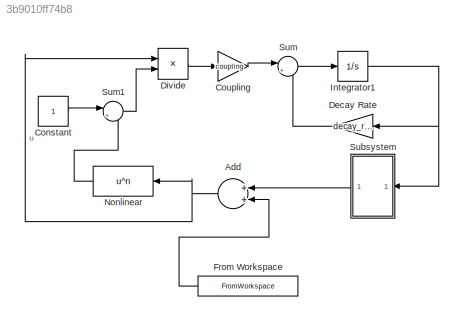
MODEL slx_3b9010ff74b8
KIND model
CONFIG AbsTol = auto
CONFIG EnableMultiTasking = off
CONFIG FixedStep = 0.01
CONFIG MaxStep = auto
CONFIG MinStep = auto
CONFIG RelTol = 1e-3
CONFIG SampleTimeConstraint = Unconstrained
CONFIG Solver = ode4
CONFIG SolverName = ode4
CONFIG StartTime = 0.0
CONFIG StopTime = TFinal
BLOCK [Sum] Add
  InputSameDT = off
  OutDataTypeStr = Inherit: Inherit via internal rule
  Ports = [2, 1]
  SaturateOnIntegerOverflow = off
BLOCK [Constant] Constant
BLOCK [Gain] Coupling
  Gain = coupling
  OutDataTypeStr = Inherit: Inherit via internal rule
  ParamDataTypeStr = Inherit: Inherit via internal rule
  SaturateOnIntegerOverflow = off
BLOCK [Gain] Decay Rate 
  Gain = decay_rate
  OutDataTypeStr = Inherit: Inherit via internal rule
  ParamDataTypeStr = Inherit: Inherit via internal rule
  SaturateOnIntegerOverflow = off
BLOCK [Product] Divide
  InputSameDT = off
  Inputs = */
  OutDataTypeStr = Inherit: Inherit via internal rule
  Ports = [2, 1]
  RndMeth = Floor
  SaturateOnIntegerOverflow = off
BLOCK [FromWorkspace] From Workspace
  SampleTime = 0
  VariableName = system_inputSequence
  ZeroCross = on
BLOCK [Integrator] Integrator1
  IgnoreLimit = on
  Ports = [1, 1]
BLOCK [Fcn] Nonlinear
  Expr = u^n
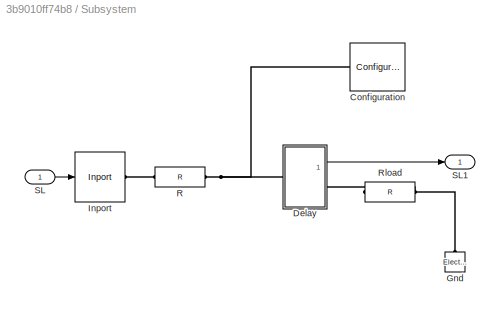
BLOCK [SubSystem] Subsystem
  Ports = [1, 1]
  RequestExecContextInheritance = off
BLOCK [Reference] Subsystem/Configuration  REF=simrfV2util1/Configuration
  Ports = [0, 0, 0, 0, 0, 1]
  SourceBlock = simrfV2util1/Configuration
  SourceProductBaseCode = RB
  SourceProductName = RF Blockset
  SourceType = Configuration
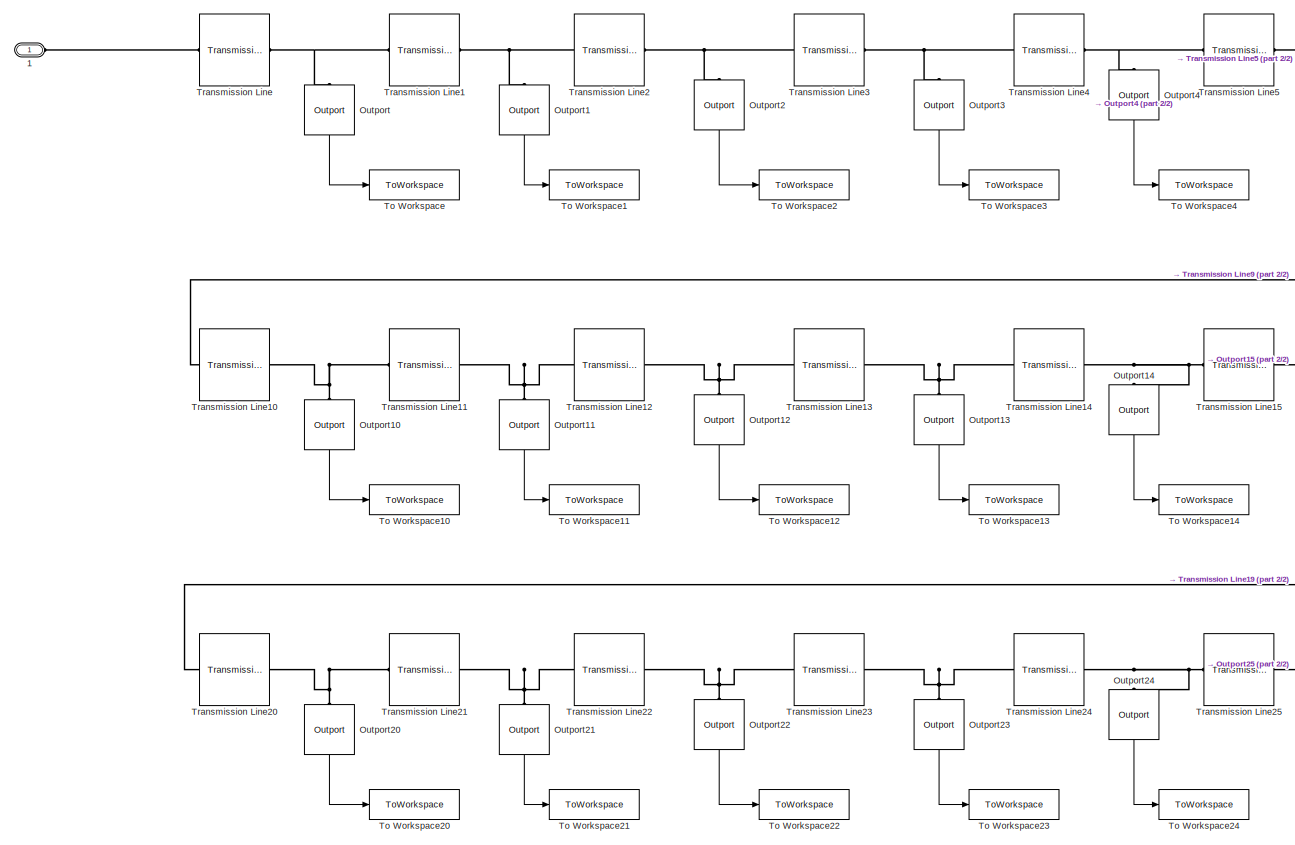
[diagram: Subsystem/Delay - part 1/2, left side, full height]
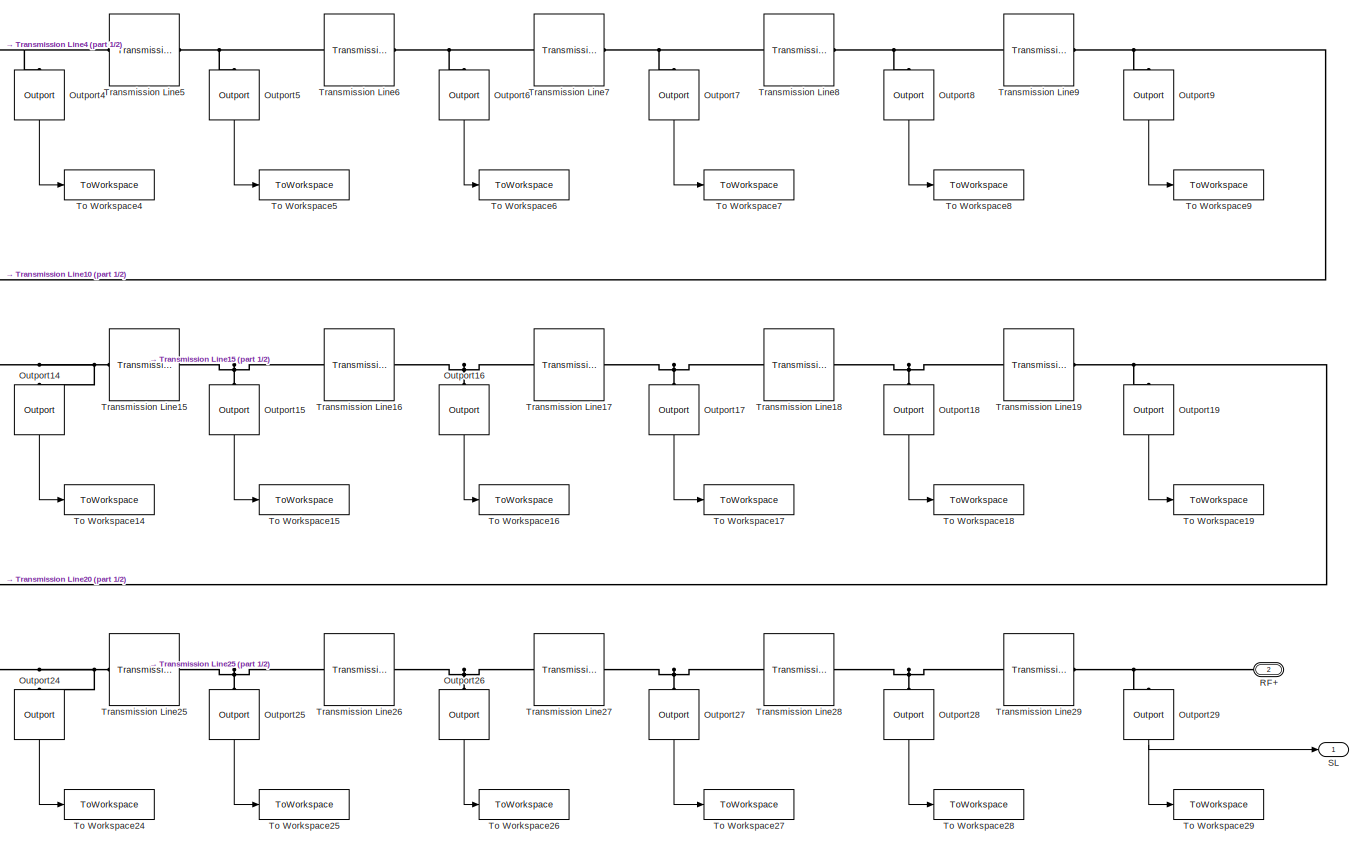
[diagram: Subsystem/Delay - part 2/2, right side, full height]
BLOCK [SubSystem] Subsystem/Delay
  Ports = [0, 1, 0, 0, 0, 1, 1]
  RequestExecContextInheritance = off
BLOCK [PMIOPort] Subsystem/Delay/1
  Side = Left
BLOCK [Reference] Subsystem/Delay/Outport  REF=simrfV2util1/Outport
  Ports = [0, 1, 0, 0, 0, 1]
  SourceBlock = simrfV2util1/Outport
  SourceProductBaseCode = RB
  SourceProductName = RF Blockset
  SourceType = Outport
BLOCK [Reference] Subsystem/Delay/Outport1  REF=simrfV2util1/Outport
  Ports = [0, 1, 0, 0, 0, 1]
  SourceBlock = simrfV2util1/Outport
  SourceProductBaseCode = RB
  SourceProductName = RF Blockset
  SourceType = Outport
BLOCK [Reference] Subsystem/Delay/Outport10  REF=simrfV2util1/Outport
  Ports = [0, 1, 0, 0, 0, 1]
  SourceBlock = simrfV2util1/Outport
  SourceProductBaseCode = RB
  SourceProductName = RF Blockset
  SourceType = Outport
BLOCK [Reference] Subsystem/Delay/Outport11  REF=simrfV2util1/Outport
  Ports = [0, 1, 0, 0, 0, 1]
  SourceBlock = simrfV2util1/Outport
  SourceProductBaseCode = RB
  SourceProductName = RF Blockset
  SourceType = Outport
BLOCK [Reference] Subsystem/Delay/Outport12  REF=simrfV2util1/Outport
  Ports = [0, 1, 0, 0, 0, 1]
  SourceBlock = simrfV2util1/Outport
  SourceProductBaseCode = RB
  SourceProductName = RF Blockset
  SourceType = Outport
BLOCK [Reference] Subsystem/Delay/Outport13  REF=simrfV2util1/Outport
  Ports = [0, 1, 0, 0, 0, 1]
  SourceBlock = simrfV2util1/Outport
  SourceProductBaseCode = RB
  SourceProductName = RF Blockset
  SourceType = Outport
BLOCK [Reference] Subsystem/Delay/Outport14  REF=simrfV2util1/Outport
  Ports = [0, 1, 0, 0, 0, 1]
  SourceBlock = simrfV2util1/Outport
  SourceProductBaseCode = RB
  SourceProductName = RF Blockset
  SourceType = Outport
BLOCK [Reference] Subsystem/Delay/Outport15  REF=simrfV2util1/Outport
  Ports = [0, 1, 0, 0, 0, 1]
  SourceBlock = simrfV2util1/Outport
  SourceProductBaseCode = RB
  SourceProductName = RF Blockset
  SourceType = Outport
BLOCK [Reference] Subsystem/Delay/Outport16  REF=simrfV2util1/Outport
  Ports = [0, 1, 0, 0, 0, 1]
  SourceBlock = simrfV2util1/Outport
  SourceProductBaseCode = RB
  SourceProductName = RF Blockset
  SourceType = Outport
BLOCK [Reference] Subsystem/Delay/Outport17  REF=simrfV2util1/Outport
  Ports = [0, 1, 0, 0, 0, 1]
  SourceBlock = simrfV2util1/Outport
  SourceProductBaseCode = RB
  SourceProductName = RF Blockset
  SourceType = Outport
BLOCK [Reference] Subsystem/Delay/Outport18  REF=simrfV2util1/Outport
  Ports = [0, 1, 0, 0, 0, 1]
  SourceBlock = simrfV2util1/Outport
  SourceProductBaseCode = RB
  SourceProductName = RF Blockset
  SourceType = Outport
BLOCK [Reference] Subsystem/Delay/Outport19  REF=simrfV2util1/Outport
  Ports = [0, 1, 0, 0, 0, 1]
  SourceBlock = simrfV2util1/Outport
  SourceProductBaseCode = RB
  SourceProductName = RF Blockset
  SourceType = Outport
BLOCK [Reference] Subsystem/Delay/Outport2  REF=simrfV2util1/Outport
  Ports = [0, 1, 0, 0, 0, 1]
  SourceBlock = simrfV2util1/Outport
  SourceProductBaseCode = RB
  SourceProductName = RF Blockset
  SourceType = Outport
BLOCK [Reference] Subsystem/Delay/Outport20  REF=simrfV2util1/Outport
  Ports = [0, 1, 0, 0, 0, 1]
  SourceBlock = simrfV2util1/Outport
  SourceProductBaseCode = RB
  SourceProductName = RF Blockset
  SourceType = Outport
BLOCK [Reference] Subsystem/Delay/Outport21  REF=simrfV2util1/Outport
  Ports = [0, 1, 0, 0, 0, 1]
  SourceBlock = simrfV2util1/Outport
  SourceProductBaseCode = RB
  SourceProductName = RF Blockset
  SourceType = Outport
BLOCK [Reference] Subsystem/Delay/Outport22  REF=simrfV2util1/Outport
  Ports = [0, 1, 0, 0, 0, 1]
  SourceBlock = simrfV2util1/Outport
  SourceProductBaseCode = RB
  SourceProductName = RF Blockset
  SourceType = Outport
BLOCK [Reference] Subsystem/Delay/Outport23  REF=simrfV2util1/Outport
  Ports = [0, 1, 0, 0, 0, 1]
  SourceBlock = simrfV2util1/Outport
  SourceProductBaseCode = RB
  SourceProductName = RF Blockset
  SourceType = Outport
BLOCK [Reference] Subsystem/Delay/Outport24  REF=simrfV2util1/Outport
  Ports = [0, 1, 0, 0, 0, 1]
  SourceBlock = simrfV2util1/Outport
  SourceProductBaseCode = RB
  SourceProductName = RF Blockset
  SourceType = Outport
BLOCK [Reference] Subsystem/Delay/Outport25  REF=simrfV2util1/Outport
  Ports = [0, 1, 0, 0, 0, 1]
  SourceBlock = simrfV2util1/Outport
  SourceProductBaseCode = RB
  SourceProductName = RF Blockset
  SourceType = Outport
BLOCK [Reference] Subsystem/Delay/Outport26  REF=simrfV2util1/Outport
  Ports = [0, 1, 0, 0, 0, 1]
  SourceBlock = simrfV2util1/Outport
  SourceProductBaseCode = RB
  SourceProductName = RF Blockset
  SourceType = Outport
BLOCK [Reference] Subsystem/Delay/Outport27  REF=simrfV2util1/Outport
  Ports = [0, 1, 0, 0, 0, 1]
  SourceBlock = simrfV2util1/Outport
  SourceProductBaseCode = RB
  SourceProductName = RF Blockset
  SourceType = Outport
BLOCK [Reference] Subsystem/Delay/Outport28  REF=simrfV2util1/Outport
  Ports = [0, 1, 0, 0, 0, 1]
  SourceBlock = simrfV2util1/Outport
  SourceProductBaseCode = RB
  SourceProductName = RF Blockset
  SourceType = Outport
BLOCK [Reference] Subsystem/Delay/Outport29  REF=simrfV2util1/Outport
  Ports = [0, 1, 0, 0, 0, 1]
  SourceBlock = simrfV2util1/Outport
  SourceProductBaseCode = RB
  SourceProductName = RF Blockset
  SourceType = Outport
BLOCK [Reference] Subsystem/Delay/Outport3  REF=simrfV2util1/Outport
  Ports = [0, 1, 0, 0, 0, 1]
  SourceBlock = simrfV2util1/Outport
  SourceProductBaseCode = RB
  SourceProductName = RF Blockset
  SourceType = Outport
BLOCK [Reference] Subsystem/Delay/Outport4  REF=simrfV2util1/Outport
  Ports = [0, 1, 0, 0, 0, 1]
  SourceBlock = simrfV2util1/Outport
  SourceProductBaseCode = RB
  SourceProductName = RF Blockset
  SourceType = Outport
BLOCK [Reference] Subsystem/Delay/Outport5  REF=simrfV2util1/Outport
  Ports = [0, 1, 0, 0, 0, 1]
  SourceBlock = simrfV2util1/Outport
  SourceProductBaseCode = RB
  SourceProductName = RF Blockset
  SourceType = Outport
BLOCK [Reference] Subsystem/Delay/Outport6  REF=simrfV2util1/Outport
  Ports = [0, 1, 0, 0, 0, 1]
  SourceBlock = simrfV2util1/Outport
  SourceProductBaseCode = RB
  SourceProductName = RF Blockset
  SourceType = Outport
BLOCK [Reference] Subsystem/Delay/Outport7  REF=simrfV2util1/Outport
  Ports = [0, 1, 0, 0, 0, 1]
  SourceBlock = simrfV2util1/Outport
  SourceProductBaseCode = RB
  SourceProductName = RF Blockset
  SourceType = Outport
BLOCK [Reference] Subsystem/Delay/Outport8  REF=simrfV2util1/Outport
  Ports = [0, 1, 0, 0, 0, 1]
  SourceBlock = simrfV2util1/Outport
  SourceProductBaseCode = RB
  SourceProductName = RF Blockset
  SourceType = Outport
BLOCK [Reference] Subsystem/Delay/Outport9  REF=simrfV2util1/Outport
  Ports = [0, 1, 0, 0, 0, 1]
  SourceBlock = simrfV2util1/Outport
  SourceProductBaseCode = RB
  SourceProductName = RF Blockset
  SourceType = Outport
BLOCK [PMIOPort] Subsystem/Delay/RF+
  Port = 2
  Side = Right
BLOCK [Outport] Subsystem/Delay/SL
  IconDisplay = Port number
BLOCK [ToWorkspace] Subsystem/Delay/To Workspace
  FixptAsFi = on
  MaxDataPoints = inf
  Ports = [1]
  SampleTime = sample_time
  VariableName = simout
BLOCK [ToWorkspace] Subsystem/Delay/To Workspace1
  FixptAsFi = on
  MaxDataPoints = inf
  Ports = [1]
  SampleTime = sample_time
  VariableName = simout1
BLOCK [ToWorkspace] Subsystem/Delay/To Workspace10
  FixptAsFi = on
  MaxDataPoints = inf
  Ports = [1]
  SampleTime = sample_time
  VariableName = simout10
BLOCK [ToWorkspace] Subsystem/Delay/To Workspace11
  FixptAsFi = on
  MaxDataPoints = inf
  Ports = [1]
  SampleTime = sample_time
  VariableName = simout11
BLOCK [ToWorkspace] Subsystem/Delay/To Workspace12
  FixptAsFi = on
  MaxDataPoints = inf
  Ports = [1]
  SampleTime = sample_time
  VariableName = simout12
BLOCK [ToWorkspace] Subsystem/Delay/To Workspace13
  FixptAsFi = on
  MaxDataPoints = inf
  Ports = [1]
  SampleTime = sample_time
  VariableName = simout13
BLOCK [ToWorkspace] Subsystem/Delay/To Workspace14
  FixptAsFi = on
  MaxDataPoints = inf
  Ports = [1]
  SampleTime = sample_time
  VariableName = simout14
BLOCK [ToWorkspace] Subsystem/Delay/To Workspace15
  FixptAsFi = on
  MaxDataPoints = inf
  Ports = [1]
  SampleTime = sample_time
  VariableName = simout15
BLOCK [ToWorkspace] Subsystem/Delay/To Workspace16
  FixptAsFi = on
  MaxDataPoints = inf
  Ports = [1]
  SampleTime = sample_time
  VariableName = simout16
BLOCK [ToWorkspace] Subsystem/Delay/To Workspace17
  FixptAsFi = on
  MaxDataPoints = inf
  Ports = [1]
  SampleTime = sample_time
  VariableName = simout17
BLOCK [ToWorkspace] Subsystem/Delay/To Workspace18
  FixptAsFi = on
  MaxDataPoints = inf
  Ports = [1]
  SampleTime = sample_time
  VariableName = simout18
BLOCK [ToWorkspace] Subsystem/Delay/To Workspace19
  FixptAsFi = on
  MaxDataPoints = inf
  Ports = [1]
  SampleTime = sample_time
  VariableName = simout19
BLOCK [ToWorkspace] Subsystem/Delay/To Workspace2
  FixptAsFi = on
  MaxDataPoints = inf
  Ports = [1]
  SampleTime = sample_time
  VariableName = simout2
BLOCK [ToWorkspace] Subsystem/Delay/To Workspace20
  FixptAsFi = on
  MaxDataPoints = inf
  Ports = [1]
  SampleTime = sample_time
  VariableName = simout20
BLOCK [ToWorkspace] Subsystem/Delay/To Workspace21
  FixptAsFi = on
  MaxDataPoints = inf
  Ports = [1]
  SampleTime = sample_time
  VariableName = simout21
BLOCK [ToWorkspace] Subsystem/Delay/To Workspace22
  FixptAsFi = on
  MaxDataPoints = inf
  Ports = [1]
  SampleTime = sample_time
  VariableName = simout22
BLOCK [ToWorkspace] Subsystem/Delay/To Workspace23
  FixptAsFi = on
  MaxDataPoints = inf
  Ports = [1]
  SampleTime = sample_time
  VariableName = simout23
BLOCK [ToWorkspace] Subsystem/Delay/To Workspace24
  FixptAsFi = on
  MaxDataPoints = inf
  Ports = [1]
  SampleTime = sample_time
  VariableName = simout24
BLOCK [ToWorkspace] Subsystem/Delay/To Workspace25
  FixptAsFi = on
  MaxDataPoints = inf
  Ports = [1]
  SampleTime = sample_time
  VariableName = simout25
BLOCK [ToWorkspace] Subsystem/Delay/To Workspace26
  FixptAsFi = on
  MaxDataPoints = inf
  Ports = [1]
  SampleTime = sample_time
  VariableName = simout26
BLOCK [ToWorkspace] Subsystem/Delay/To Workspace27
  FixptAsFi = on
  MaxDataPoints = inf
  Ports = [1]
  SampleTime = sample_time
  VariableName = simout27
BLOCK [ToWorkspace] Subsystem/Delay/To Workspace28
  FixptAsFi = on
  MaxDataPoints = inf
  Ports = [1]
  SampleTime = sample_time
  VariableName = simout28
BLOCK [ToWorkspace] Subsystem/Delay/To Workspace29
  FixptAsFi = on
  MaxDataPoints = inf
  Ports = [1]
  SampleTime = sample_time
  VariableName = simout29
BLOCK [ToWorkspace] Subsystem/Delay/To Workspace3
  FixptAsFi = on
  MaxDataPoints = inf
  Ports = [1]
  SampleTime = sample_time
  VariableName = simout3
BLOCK [ToWorkspace] Subsystem/Delay/To Workspace4
  FixptAsFi = on
  MaxDataPoints = inf
  Ports = [1]
  SampleTime = sample_time
  VariableName = simout4
BLOCK [ToWorkspace] Subsystem/Delay/To Workspace5
  FixptAsFi = on
  MaxDataPoints = inf
  Ports = [1]
  SampleTime = sample_time
  VariableName = simout5
BLOCK [ToWorkspace] Subsystem/Delay/To Workspace6
  FixptAsFi = on
  MaxDataPoints = inf
  Ports = [1]
  SampleTime = sample_time
  VariableName = simout6
BLOCK [ToWorkspace] Subsystem/Delay/To Workspace7
  FixptAsFi = on
  MaxDataPoints = inf
  Ports = [1]
  SampleTime = sample_time
  VariableName = simout7
BLOCK [ToWorkspace] Subsystem/Delay/To Workspace8
  FixptAsFi = on
  MaxDataPoints = inf
  Ports = [1]
  SampleTime = sample_time
  VariableName = simout8
BLOCK [ToWorkspace] Subsystem/Delay/To Workspace9
  FixptAsFi = on
  MaxDataPoints = inf
  Ports = [1]
  SampleTime = sample_time
  VariableName = simout9
BLOCK [Reference] Subsystem/Delay/Transmission Line  REF=simrfV2elements/Transmission
Line
  Ports = [0, 0, 0, 0, 0, 1, 1]
  SourceBlock = simrfV2elements/Transmission\nLine
  SourceProductBaseCode = RB
  SourceProductName = RF Blockset
  SourceType = Transmission Line
  UserDataPersistent = on
BLOCK [Reference] Subsystem/Delay/Transmission Line1  REF=simrfV2elements/Transmission
Line
  Ports = [0, 0, 0, 0, 0, 1, 1]
  SourceBlock = simrfV2elements/Transmission\nLine
  SourceProductBaseCode = RB
  SourceProductName = RF Blockset
  SourceType = Transmission Line
  UserDataPersistent = on
BLOCK [Reference] Subsystem/Delay/Transmission Line10  REF=simrfV2elements/Transmission
Line
  Ports = [0, 0, 0, 0, 0, 1, 1]
  SourceBlock = simrfV2elements/Transmission\nLine
  SourceProductBaseCode = RB
  SourceProductName = RF Blockset
  SourceType = Transmission Line
  UserDataPersistent = on
BLOCK [Reference] Subsystem/Delay/Transmission Line11  REF=simrfV2elements/Transmission
Line
  Ports = [0, 0, 0, 0, 0, 1, 1]
  SourceBlock = simrfV2elements/Transmission\nLine
  SourceProductBaseCode = RB
  SourceProductName = RF Blockset
  SourceType = Transmission Line
  UserDataPersistent = on
BLOCK [Reference] Subsystem/Delay/Transmission Line12  REF=simrfV2elements/Transmission
Line
  Ports = [0, 0, 0, 0, 0, 1, 1]
  SourceBlock = simrfV2elements/Transmission\nLine
  SourceProductBaseCode = RB
  SourceProductName = RF Blockset
  SourceType = Transmission Line
  UserDataPersistent = on
BLOCK [Reference] Subsystem/Delay/Transmission Line13  REF=simrfV2elements/Transmission
Line
  Ports = [0, 0, 0, 0, 0, 1, 1]
  SourceBlock = simrfV2elements/Transmission\nLine
  SourceProductBaseCode = RB
  SourceProductName = RF Blockset
  SourceType = Transmission Line
  UserDataPersistent = on
BLOCK [Reference] Subsystem/Delay/Transmission Line14  REF=simrfV2elements/Transmission
Line
  Ports = [0, 0, 0, 0, 0, 1, 1]
  SourceBlock = simrfV2elements/Transmission\nLine
  SourceProductBaseCode = RB
  SourceProductName = RF Blockset
  SourceType = Transmission Line
  UserDataPersistent = on
BLOCK [Reference] Subsystem/Delay/Transmission Line15  REF=simrfV2elements/Transmission
Line
  Ports = [0, 0, 0, 0, 0, 1, 1]
  SourceBlock = simrfV2elements/Transmission\nLine
  SourceProductBaseCode = RB
  SourceProductName = RF Blockset
  SourceType = Transmission Line
  UserDataPersistent = on
BLOCK [Reference] Subsystem/Delay/Transmission Line16  REF=simrfV2elements/Transmission
Line
  Ports = [0, 0, 0, 0, 0, 1, 1]
  SourceBlock = simrfV2elements/Transmission\nLine
  SourceProductBaseCode = RB
  SourceProductName = RF Blockset
  SourceType = Transmission Line
  UserDataPersistent = on
BLOCK [Reference] Subsystem/Delay/Transmission Line17  REF=simrfV2elements/Transmission
Line
  Ports = [0, 0, 0, 0, 0, 1, 1]
  SourceBlock = simrfV2elements/Transmission\nLine
  SourceProductBaseCode = RB
  SourceProductName = RF Blockset
  SourceType = Transmission Line
  UserDataPersistent = on
BLOCK [Reference] Subsystem/Delay/Transmission Line18  REF=simrfV2elements/Transmission
Line
  Ports = [0, 0, 0, 0, 0, 1, 1]
  SourceBlock = simrfV2elements/Transmission\nLine
  SourceProductBaseCode = RB
  SourceProductName = RF Blockset
  SourceType = Transmission Line
  UserDataPersistent = on
BLOCK [Reference] Subsystem/Delay/Transmission Line19  REF=simrfV2elements/Transmission
Line
  Ports = [0, 0, 0, 0, 0, 1, 1]
  SourceBlock = simrfV2elements/Transmission\nLine
  SourceProductBaseCode = RB
  SourceProductName = RF Blockset
  SourceType = Transmission Line
  UserDataPersistent = on
BLOCK [Reference] Subsystem/Delay/Transmission Line2  REF=simrfV2elements/Transmission
Line
  Ports = [0, 0, 0, 0, 0, 1, 1]
  SourceBlock = simrfV2elements/Transmission\nLine
  SourceProductBaseCode = RB
  SourceProductName = RF Blockset
  SourceType = Transmission Line
  UserDataPersistent = on
BLOCK [Reference] Subsystem/Delay/Transmission Line20  REF=simrfV2elements/Transmission
Line
  Ports = [0, 0, 0, 0, 0, 1, 1]
  SourceBlock = simrfV2elements/Transmission\nLine
  SourceProductBaseCode = RB
  SourceProductName = RF Blockset
  SourceType = Transmission Line
  UserDataPersistent = on
BLOCK [Reference] Subsystem/Delay/Transmission Line21  REF=simrfV2elements/Transmission
Line
  Ports = [0, 0, 0, 0, 0, 1, 1]
  SourceBlock = simrfV2elements/Transmission\nLine
  SourceProductBaseCode = RB
  SourceProductName = RF Blockset
  SourceType = Transmission Line
  UserDataPersistent = on
BLOCK [Reference] Subsystem/Delay/Transmission Line22  REF=simrfV2elements/Transmission
Line
  Ports = [0, 0, 0, 0, 0, 1, 1]
  SourceBlock = simrfV2elements/Transmission\nLine
  SourceProductBaseCode = RB
  SourceProductName = RF Blockset
  SourceType = Transmission Line
  UserDataPersistent = on
BLOCK [Reference] Subsystem/Delay/Transmission Line23  REF=simrfV2elements/Transmission
Line
  Ports = [0, 0, 0, 0, 0, 1, 1]
  SourceBlock = simrfV2elements/Transmission\nLine
  SourceProductBaseCode = RB
  SourceProductName = RF Blockset
  SourceType = Transmission Line
  UserDataPersistent = on
BLOCK [Reference] Subsystem/Delay/Transmission Line24  REF=simrfV2elements/Transmission
Line
  Ports = [0, 0, 0, 0, 0, 1, 1]
  SourceBlock = simrfV2elements/Transmission\nLine
  SourceProductBaseCode = RB
  SourceProductName = RF Blockset
  SourceType = Transmission Line
  UserDataPersistent = on
BLOCK [Reference] Subsystem/Delay/Transmission Line25  REF=simrfV2elements/Transmission
Line
  Ports = [0, 0, 0, 0, 0, 1, 1]
  SourceBlock = simrfV2elements/Transmission\nLine
  SourceProductBaseCode = RB
  SourceProductName = RF Blockset
  SourceType = Transmission Line
  UserDataPersistent = on
BLOCK [Reference] Subsystem/Delay/Transmission Line26  REF=simrfV2elements/Transmission
Line
  Ports = [0, 0, 0, 0, 0, 1, 1]
  SourceBlock = simrfV2elements/Transmission\nLine
  SourceProductBaseCode = RB
  SourceProductName = RF Blockset
  SourceType = Transmission Line
  UserDataPersistent = on
BLOCK [Reference] Subsystem/Delay/Transmission Line27  REF=simrfV2elements/Transmission
Line
  Ports = [0, 0, 0, 0, 0, 1, 1]
  SourceBlock = simrfV2elements/Transmission\nLine
  SourceProductBaseCode = RB
  SourceProductName = RF Blockset
  SourceType = Transmission Line
  UserDataPersistent = on
BLOCK [Reference] Subsystem/Delay/Transmission Line28  REF=simrfV2elements/Transmission
Line
  Ports = [0, 0, 0, 0, 0, 1, 1]
  SourceBlock = simrfV2elements/Transmission\nLine
  SourceProductBaseCode = RB
  SourceProductName = RF Blockset
  SourceType = Transmission Line
  UserDataPersistent = on
BLOCK [Reference] Subsystem/Delay/Transmission Line29  REF=simrfV2elements/Transmission
Line
  Ports = [0, 0, 0, 0, 0, 1, 1]
  SourceBlock = simrfV2elements/Transmission\nLine
  SourceProductBaseCode = RB
  SourceProductName = RF Blockset
  SourceType = Transmission Line
  UserDataPersistent = on
BLOCK [Reference] Subsystem/Delay/Transmission Line3  REF=simrfV2elements/Transmission
Line
  Ports = [0, 0, 0, 0, 0, 1, 1]
  SourceBlock = simrfV2elements/Transmission\nLine
  SourceProductBaseCode = RB
  SourceProductName = RF Blockset
  SourceType = Transmission Line
  UserDataPersistent = on
BLOCK [Reference] Subsystem/Delay/Transmission Line4  REF=simrfV2elements/Transmission
Line
  Ports = [0, 0, 0, 0, 0, 1, 1]
  SourceBlock = simrfV2elements/Transmission\nLine
  SourceProductBaseCode = RB
  SourceProductName = RF Blockset
  SourceType = Transmission Line
  UserDataPersistent = on
BLOCK [Reference] Subsystem/Delay/Transmission Line5  REF=simrfV2elements/Transmission
Line
  Ports = [0, 0, 0, 0, 0, 1, 1]
  SourceBlock = simrfV2elements/Transmission\nLine
  SourceProductBaseCode = RB
  SourceProductName = RF Blockset
  SourceType = Transmission Line
  UserDataPersistent = on
BLOCK [Reference] Subsystem/Delay/Transmission Line6  REF=simrfV2elements/Transmission
Line
  Ports = [0, 0, 0, 0, 0, 1, 1]
  SourceBlock = simrfV2elements/Transmission\nLine
  SourceProductBaseCode = RB
  SourceProductName = RF Blockset
  SourceType = Transmission Line
  UserDataPersistent = on
BLOCK [Reference] Subsystem/Delay/Transmission Line7  REF=simrfV2elements/Transmission
Line
  Ports = [0, 0, 0, 0, 0, 1, 1]
  SourceBlock = simrfV2elements/Transmission\nLine
  SourceProductBaseCode = RB
  SourceProductName = RF Blockset
  SourceType = Transmission Line
  UserDataPersistent = on
BLOCK [Reference] Subsystem/Delay/Transmission Line8  REF=simrfV2elements/Transmission
Line
  Ports = [0, 0, 0, 0, 0, 1, 1]
  SourceBlock = simrfV2elements/Transmission\nLine
  SourceProductBaseCode = RB
  SourceProductName = RF Blockset
  SourceType = Transmission Line
  UserDataPersistent = on
BLOCK [Reference] Subsystem/Delay/Transmission Line9  REF=simrfV2elements/Transmission
Line
  Ports = [0, 0, 0, 0, 0, 1, 1]
  SourceBlock = simrfV2elements/Transmission\nLine
  SourceProductBaseCode = RB
  SourceProductName = RF Blockset
  SourceType = Transmission Line
  UserDataPersistent = on
BLOCK [Reference] Subsystem/Gnd  REF=simrfV2_lib/Elements/Electrical Reference
  Ports = [0, 0, 0, 0, 0, 1]
  SourceBlock = simrfV2_lib/Elements/Electrical Reference
  SourceProductBaseCode = RB
  SourceProductName = RF Blockset
  SourceType = Electrical Reference
BLOCK [Reference] Subsystem/Inport  REF=simrfV2util1/Inport
  Ports = [1, 0, 0, 0, 0, 0, 1]
  SourceBlock = simrfV2util1/Inport
  SourceProductBaseCode = RB
  SourceProductName = RF Blockset
  SourceType = Inport
BLOCK [Reference] Subsystem/R  REF=simrfV2elements/R
  Ports = [0, 0, 0, 0, 0, 1, 1]
  SourceBlock = simrfV2elements/R
  SourceProductBaseCode = RB
  SourceProductName = RF Blockset
  SourceType = Resistor
BLOCK [Reference] Subsystem/Rload  REF=simrfV2elements/R
  Ports = [0, 0, 0, 0, 0, 1, 1]
  SourceBlock = simrfV2elements/R
  SourceProductBaseCode = RB
  SourceProductName = RF Blockset
  SourceType = Resistor
BLOCK [Inport] Subsystem/SL
  IconDisplay = Port number
BLOCK [Outport] Subsystem/SL1
  IconDisplay = Port number
BLOCK [Sum] Sum
  IconShape = round
  InputSameDT = off
  Inputs = |+-
  OutDataTypeStr = Inherit: Inherit via internal rule
  Ports = [2, 1]
  SaturateOnIntegerOverflow = off
BLOCK [Sum] Sum1
  IconShape = round
  InputSameDT = off
  Inputs = |++
  OutDataTypeStr = Inherit: Inherit via internal rule
  Ports = [2, 1]
  SaturateOnIntegerOverflow = off
NET Add:1 -> Divide:1, Nonlinear:1
LINE Constant:1 -> Sum1:1
LINE Coupling:1 -> Sum:1
LINE Decay Rate :1 -> Sum:2
LINE Divide:1 -> Coupling:1
LINE From Workspace:1 -> Add:2
NET Integrator1:1 -> Decay Rate :1, Subsystem:1
LINE Nonlinear:1 -> Sum1:2
LINE Subsystem/Delay/Outport10:1 -> Subsystem/Delay/To Workspace10:1
LINE Subsystem/Delay/Outport11:1 -> Subsystem/Delay/To Workspace11:1
LINE Subsystem/Delay/Outport12:1 -> Subsystem/Delay/To Workspace12:1
LINE Subsystem/Delay/Outport13:1 -> Subsystem/Delay/To Workspace13:1
LINE Subsystem/Delay/Outport14:1 -> Subsystem/Delay/To Workspace14:1
LINE Subsystem/Delay/Outport15:1 -> Subsystem/Delay/To Workspace15:1
LINE Subsystem/Delay/Outport16:1 -> Subsystem/Delay/To Workspace16:1
LINE Subsystem/Delay/Outport17:1 -> Subsystem/Delay/To Workspace17:1
LINE Subsystem/Delay/Outport18:1 -> Subsystem/Delay/To Workspace18:1
LINE Subsystem/Delay/Outport19:1 -> Subsystem/Delay/To Workspace19:1
LINE Subsystem/Delay/Outport1:1 -> Subsystem/Delay/To Workspace1:1
LINE Subsystem/Delay/Outport20:1 -> Subsystem/Delay/To Workspace20:1
LINE Subsystem/Delay/Outport21:1 -> Subsystem/Delay/To Workspace21:1
LINE Subsystem/Delay/Outport22:1 -> Subsystem/Delay/To Workspace22:1
LINE Subsystem/Delay/Outport23:1 -> Subsystem/Delay/To Workspace23:1
LINE Subsystem/Delay/Outport24:1 -> Subsystem/Delay/To Workspace24:1
LINE Subsystem/Delay/Outport25:1 -> Subsystem/Delay/To Workspace25:1
LINE Subsystem/Delay/Outport26:1 -> Subsystem/Delay/To Workspace26:1
LINE Subsystem/Delay/Outport27:1 -> Subsystem/Delay/To Workspace27:1
LINE Subsystem/Delay/Outport28:1 -> Subsystem/Delay/To Workspace28:1
NET Subsystem/Delay/Outport29:1 -> Subsystem/Delay/SL:1, Subsystem/Delay/To Workspace29:1
LINE Subsystem/Delay/Outport2:1 -> Subsystem/Delay/To Workspace2:1
LINE Subsystem/Delay/Outport3:1 -> Subsystem/Delay/To Workspace3:1
LINE Subsystem/Delay/Outport4:1 -> Subsystem/Delay/To Workspace4:1
LINE Subsystem/Delay/Outport5:1 -> Subsystem/Delay/To Workspace5:1
LINE Subsystem/Delay/Outport6:1 -> Subsystem/Delay/To Workspace6:1
LINE Subsystem/Delay/Outport7:1 -> Subsystem/Delay/To Workspace7:1
LINE Subsystem/Delay/Outport8:1 -> Subsystem/Delay/To Workspace8:1
LINE Subsystem/Delay/Outport9:1 -> Subsystem/Delay/To Workspace9:1
LINE Subsystem/Delay/Outport:1 -> Subsystem/Delay/To Workspace:1
LINE Subsystem/Delay:1 -> Subsystem/SL1:1
LINE Subsystem/SL:1 -> Subsystem/Inport:1
LINE Subsystem:1 -> Add:1
LINE Sum1:1 -> Divide:2
LINE Sum:1 -> Integrator1:1
PNET net1: Subsystem/Configuration:LConn1 -- Subsystem/Delay:LConn1 -- Subsystem/R:RConn1
PLINE Subsystem/Delay/1:RConn1 -- Subsystem/Delay/Transmission Line:LConn1
PNET net2: Subsystem/Delay/Outport10:LConn1 -- Subsystem/Delay/Transmission Line10:RConn1 -- Subsystem/Delay/Transmission Line11:LConn1
PNET net3: Subsystem/Delay/Outport11:LConn1 -- Subsystem/Delay/Transmission Line11:RConn1 -- Subsystem/Delay/Transmission Line12:LConn1
PNET net4: Subsystem/Delay/Outport12:LConn1 -- Subsystem/Delay/Transmission Line12:RConn1 -- Subsystem/Delay/Transmission Line13:LConn1
PNET net5: Subsystem/Delay/Outport13:LConn1 -- Subsystem/Delay/Transmission Line13:RConn1 -- Subsystem/Delay/Transmission Line14:LConn1
PNET net6: Subsystem/Delay/Outport14:LConn1 -- Subsystem/Delay/Transmission Line14:RConn1 -- Subsystem/Delay/Transmission Line15:LConn1
PNET net7: Subsystem/Delay/Outport15:LConn1 -- Subsystem/Delay/Transmission Line15:RConn1 -- Subsystem/Delay/Transmission Line16:LConn1
PNET net8: Subsystem/Delay/Outport16:LConn1 -- Subsystem/Delay/Transmission Line16:RConn1 -- Subsystem/Delay/Transmission Line17:LConn1
PNET net9: Subsystem/Delay/Outport17:LConn1 -- Subsystem/Delay/Transmission Line17:RConn1 -- Subsystem/Delay/Transmission Line18:LConn1
PNET net10: Subsystem/Delay/Outport18:LConn1 -- Subsystem/Delay/Transmission Line18:RConn1 -- Subsystem/Delay/Transmission Line19:LConn1
PNET net11: Subsystem/Delay/Outport19:LConn1 -- Subsystem/Delay/Transmission Line19:RConn1 -- Subsystem/Delay/Transmission Line20:LConn1
PNET net12: Subsystem/Delay/Outport1:LConn1 -- Subsystem/Delay/Transmission Line1:RConn1 -- Subsystem/Delay/Transmission Line2:LConn1
PNET net13: Subsystem/Delay/Outport20:LConn1 -- Subsystem/Delay/Transmission Line20:RConn1 -- Subsystem/Delay/Transmission Line21:LConn1
PNET net14: Subsystem/Delay/Outport21:LConn1 -- Subsystem/Delay/Transmission Line21:RConn1 -- Subsystem/Delay/Transmission Line22:LConn1
PNET net15: Subsystem/Delay/Outport22:LConn1 -- Subsystem/Delay/Transmission Line22:RConn1 -- Subsystem/Delay/Transmission Line23:LConn1
PNET net16: Subsystem/Delay/Outport23:LConn1 -- Subsystem/Delay/Transmission Line23:RConn1 -- Subsystem/Delay/Transmission Line24:LConn1
PNET net17: Subsystem/Delay/Outport24:LConn1 -- Subsystem/Delay/Transmission Line24:RConn1 -- Subsystem/Delay/Transmission Line25:LConn1
PNET net18: Subsystem/Delay/Outport25:LConn1 -- Subsystem/Delay/Transmission Line25:RConn1 -- Subsystem/Delay/Transmission Line26:LConn1
PNET net19: Subsystem/Delay/Outport26:LConn1 -- Subsystem/Delay/Transmission Line26:RConn1 -- Subsystem/Delay/Transmission Line27:LConn1
PNET net20: Subsystem/Delay/Outport27:LConn1 -- Subsystem/Delay/Transmission Line27:RConn1 -- Subsystem/Delay/Transmission Line28:LConn1
PNET net21: Subsystem/Delay/Outport28:LConn1 -- Subsystem/Delay/Transmission Line28:RConn1 -- Subsystem/Delay/Transmission Line29:LConn1
PNET net22: Subsystem/Delay/Outport29:LConn1 -- Subsystem/Delay/RF+:RConn1 -- Subsystem/Delay/Transmission Line29:RConn1
PNET net23: Subsystem/Delay/Outport2:LConn1 -- Subsystem/Delay/Transmission Line2:RConn1 -- Subsystem/Delay/Transmission Line3:LConn1
PNET net24: Subsystem/Delay/Outport3:LConn1 -- Subsystem/Delay/Transmission Line3:RConn1 -- Subsystem/Delay/Transmission Line4:LConn1
PNET net25: Subsystem/Delay/Outport4:LConn1 -- Subsystem/Delay/Transmission Line4:RConn1 -- Subsystem/Delay/Transmission Line5:LConn1
PNET net26: Subsystem/Delay/Outport5:LConn1 -- Subsystem/Delay/Transmission Line5:RConn1 -- Subsystem/Delay/Transmission Line6:LConn1
PNET net27: Subsystem/Delay/Outport6:LConn1 -- Subsystem/Delay/Transmission Line6:RConn1 -- Subsystem/Delay/Transmission Line7:LConn1
PNET net28: Subsystem/Delay/Outport7:LConn1 -- Subsystem/Delay/Transmission Line7:RConn1 -- Subsystem/Delay/Transmission Line8:LConn1
PNET net29: Subsystem/Delay/Outport8:LConn1 -- Subsystem/Delay/Transmission Line8:RConn1 -- Subsystem/Delay/Transmission Line9:LConn1
PNET net30: Subsystem/Delay/Outport9:LConn1 -- Subsystem/Delay/Transmission Line10:LConn1 -- Subsystem/Delay/Transmission Line9:RConn1
PNET net31: Subsystem/Delay/Outport:LConn1 -- Subsystem/Delay/Transmission Line1:LConn1 -- Subsystem/Delay/Transmission Line:RConn1
PLINE Subsystem/Delay:RConn1 -- Subsystem/Rload:RConn1
PLINE Subsystem/Gnd:LConn1 -- Subsystem/Rload:LConn1
PLINE Subsystem/Inport:RConn1 -- Subsystem/R:LConn1
note: NET lines group one-source signal fan-out (src -> all destinations, sorted); 1:1 wires keep LINE; PNET lines group multi-terminal physical nets as a canonical sorted terminal list (undirected conserving connections); 2-terminal nets keep the pairwise PLINE form
